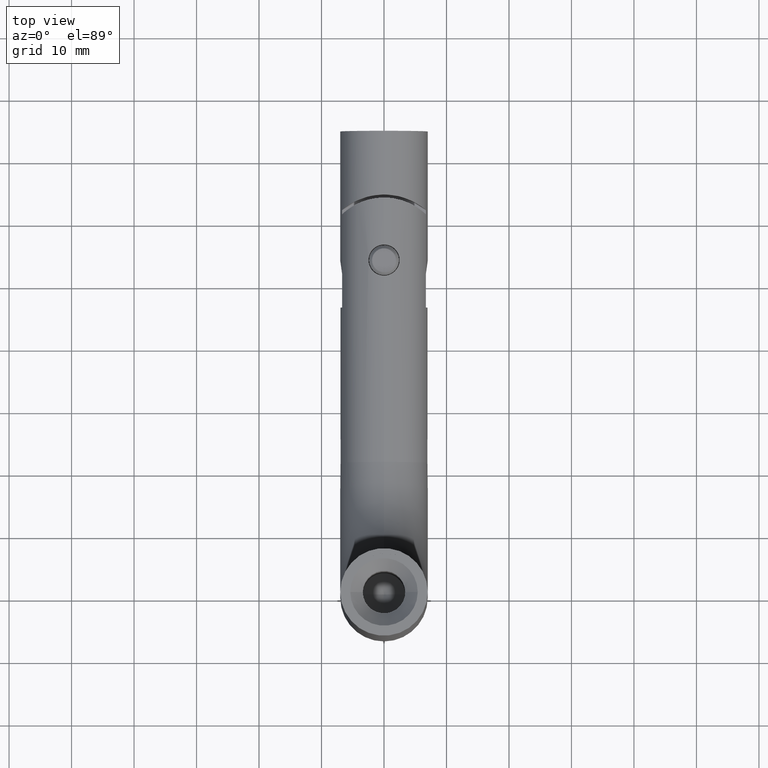
[diagram: clean part render]
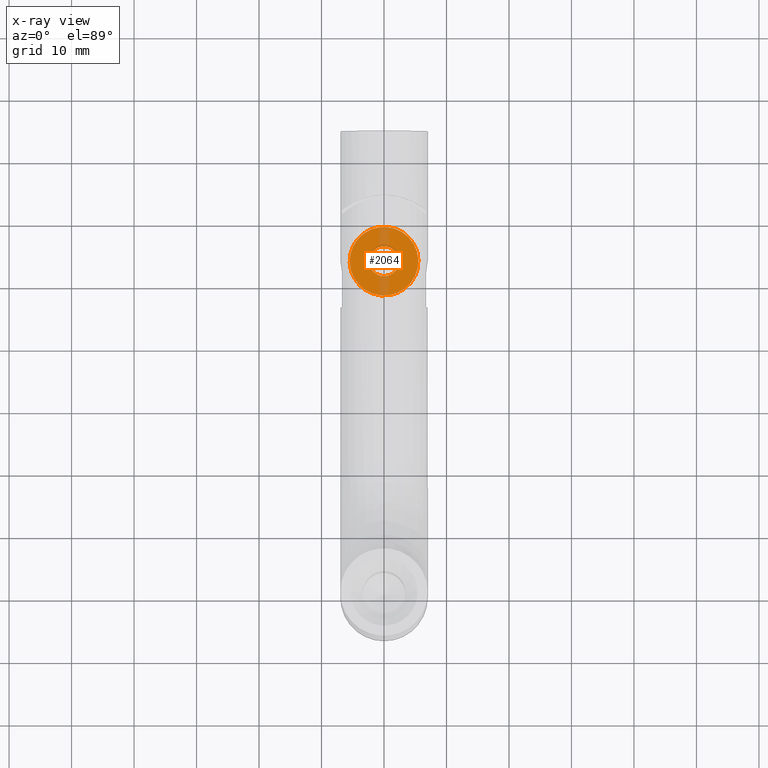
[diagram: x-ray — body ghosted, one internal face saturated and labeled with its STEP entity id]
A machine part, top view, then the same camera in x-ray: the body is ghosted and one INTERNAL B-rep face — a face not visible from any outside direction — is saturated and labeled: STEP entity #2064.
In plain terms, the highlighted planar face has unit normal (0, 0, -1).
Its self-contained STEP definition (entity closure, byte-faithful):
#505 = EDGE_LOOP ( 'NONE', ( #11572, #590 ) ) ;
#590 = ORIENTED_EDGE ( 'NONE', *, *, #14677, .F. ) ;
#1355 = DIRECTION ( 'NONE',  ( 9.030652045888134467E-37, 0.000000000000000000, -1.000000000000000000 ) ) ;
#1412 = DIRECTION ( 'NONE',  ( 0.000000000000000000, -1.000000000000000000, 0.000000000000000000 ) ) ;
#1657 = AXIS2_PLACEMENT_3D ( 'NONE', #13289, #9772, #14444 ) ;
#1882 = ORIENTED_EDGE ( 'NONE', *, *, #6516, .T. ) ;
#1940 = DIRECTION ( 'NONE',  ( 0.000000000000000000, -1.000000000000000000, 0.000000000000000000 ) ) ;
#2064 = ADVANCED_FACE ( 'NONE', ( #7953, #5226 ), #3143, .F. ) ;
#2504 = CARTESIAN_POINT ( 'NONE',  ( 2.155165110751202942E-36, 3.299999999999997158, -2.386499999999999400 ) ) ;
#2599 = VERTEX_POINT ( 'NONE', #8954 ) ;
#3143 = PLANE ( 'NONE',  #15010 ) ;
#3264 = ORIENTED_EDGE ( 'NONE', *, *, #8798, .T. ) ;
#3460 = DIRECTION ( 'NONE',  ( 0.000000000000000000, -1.000000000000000000, 0.000000000000000000 ) ) ;
#3507 = DIRECTION ( 'NONE',  ( 9.030652045888134467E-37, 0.000000000000000000, -1.000000000000000000 ) ) ;
#3601 = EDGE_LOOP ( 'NONE', ( #3264, #1882 ) ) ;
#4245 = CARTESIAN_POINT ( 'NONE',  ( 4.966858625238473456E-36, 3.299999999999997158, -5.499999999999999112 ) ) ;
#4626 = VERTEX_POINT ( 'NONE', #2504 ) ;
#4801 = AXIS2_PLACEMENT_3D ( 'NONE', #8549, #9927, #3507 ) ;
#5226 = FACE_BOUND ( 'NONE', #3601, .T. ) ;
#5351 = CARTESIAN_POINT ( 'NONE',  ( 2.922619586165157936E-16, 3.299999999999997158, 2.386499999999999844 ) ) ;
#5532 = CIRCLE ( 'NONE', #6454, 5.499999999999999112 ) ;
#6297 = EDGE_CURVE ( 'NONE', #11127, #2599, #5532, .T. ) ;
#6454 = AXIS2_PLACEMENT_3D ( 'NONE', #8332, #1412, #1355 ) ;
#6516 = EDGE_CURVE ( 'NONE', #8725, #4626, #8273, .T. ) ;
#6536 = CIRCLE ( 'NONE', #1657, 5.499999999999999112 ) ;
#7024 = CARTESIAN_POINT ( 'NONE',  ( 2.386499999999992738, 3.299999999999997158, -1.387778780781445676E-14 ) ) ;
#7953 = FACE_OUTER_BOUND ( 'NONE', #505, .T. ) ;
#8273 = CIRCLE ( 'NONE', #4801, 2.386499999999999400 ) ;
#8332 = CARTESIAN_POINT ( 'NONE',  ( 0.000000000000000000, 3.299999999999997158, 0.000000000000000000 ) ) ;
#8549 = CARTESIAN_POINT ( 'NONE',  ( 0.000000000000000000, 3.299999999999997158, 0.000000000000000000 ) ) ;
#8725 = VERTEX_POINT ( 'NONE', #5351 ) ;
#8798 = EDGE_CURVE ( 'NONE', #4626, #8725, #13541, .T. ) ;
#8954 = CARTESIAN_POINT ( 'NONE',  ( 6.735557395310443009E-16, 3.299999999999997158, 5.500000000000000000 ) ) ;
#9772 = DIRECTION ( 'NONE',  ( 0.000000000000000000, -1.000000000000000000, 0.000000000000000000 ) ) ;
#9927 = DIRECTION ( 'NONE',  ( 0.000000000000000000, -1.000000000000000000, 0.000000000000000000 ) ) ;
#10094 = CARTESIAN_POINT ( 'NONE',  ( 0.000000000000000000, 3.299999999999997158, 0.000000000000000000 ) ) ;
#11127 = VERTEX_POINT ( 'NONE', #4245 ) ;
#11572 = ORIENTED_EDGE ( 'NONE', *, *, #6297, .F. ) ;
#12805 = DIRECTION ( 'NONE',  ( 9.030652045888136138E-37, 0.000000000000000000, -1.000000000000000000 ) ) ;
#13289 = CARTESIAN_POINT ( 'NONE',  ( 0.000000000000000000, 3.299999999999997158, 0.000000000000000000 ) ) ;
#13433 = AXIS2_PLACEMENT_3D ( 'NONE', #10094, #1940, #14724 ) ;
#13541 = CIRCLE ( 'NONE', #13433, 2.386499999999999400 ) ;
#14444 = DIRECTION ( 'NONE',  ( 9.030652045888134467E-37, 0.000000000000000000, -1.000000000000000000 ) ) ;
#14677 = EDGE_CURVE ( 'NONE', #2599, #11127, #6536, .T. ) ;
#14724 = DIRECTION ( 'NONE',  ( 9.030652045888134467E-37, 0.000000000000000000, -1.000000000000000000 ) ) ;
#15010 = AXIS2_PLACEMENT_3D ( 'NONE', #7024, #3460, #12805 ) ;